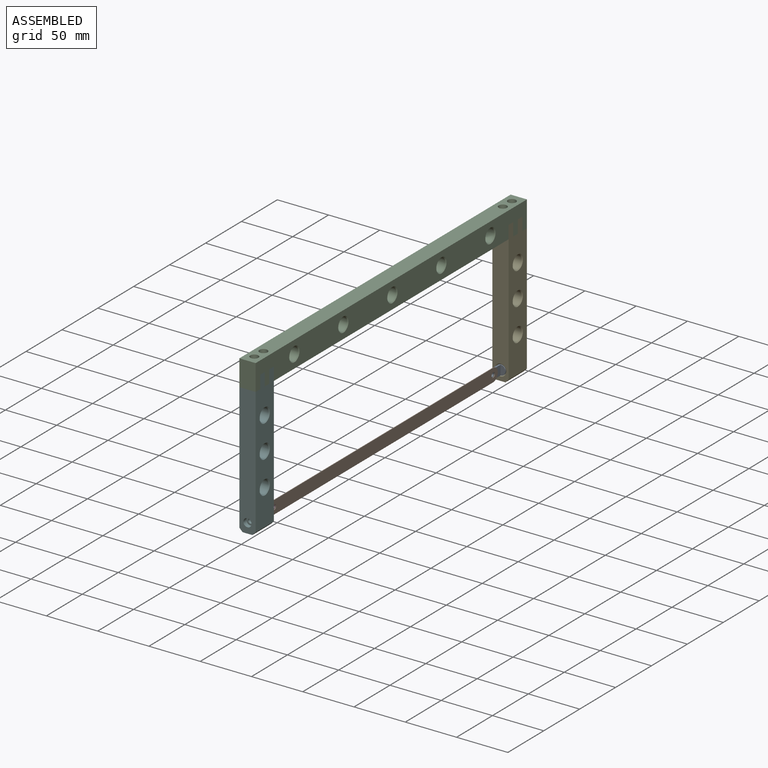
[diagram: assembled view]
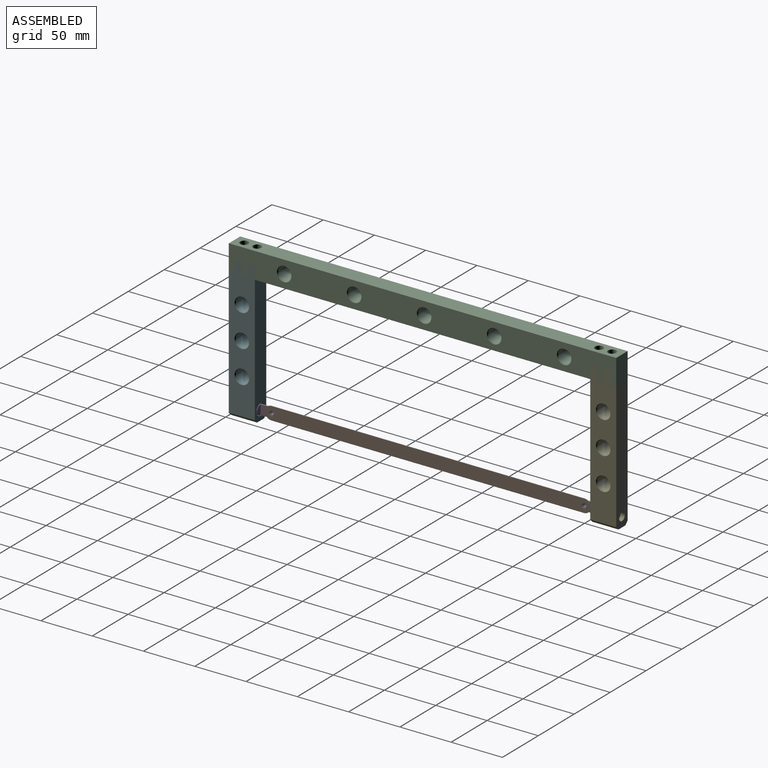
[diagram: assembled view, second angle]
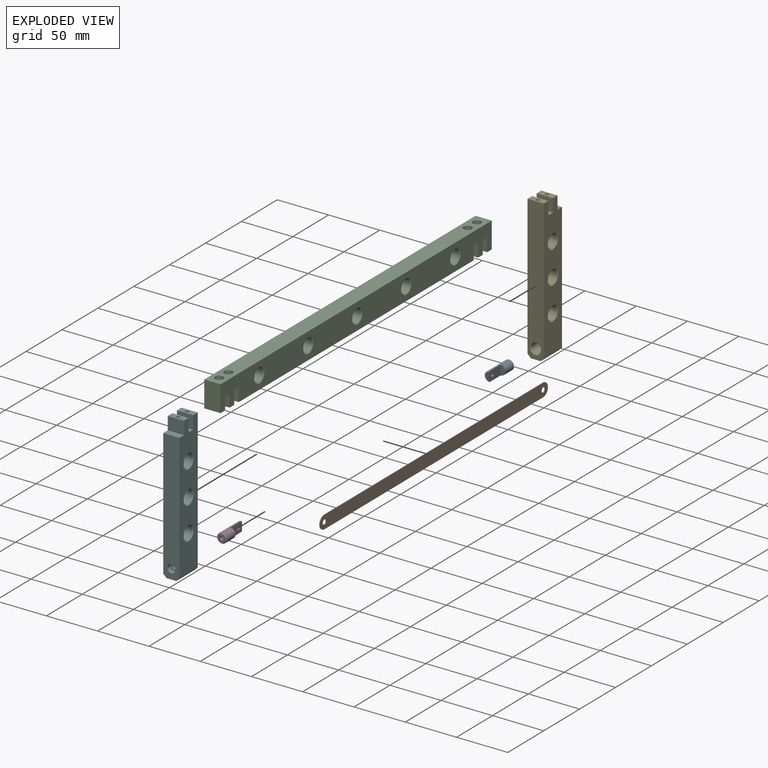
[diagram: exploded view]
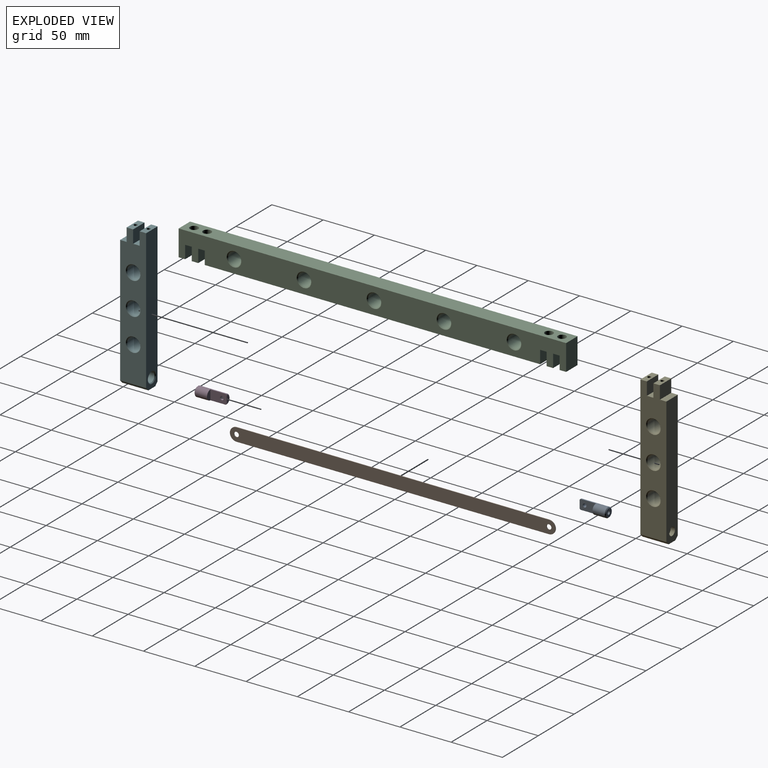
[diagram: exploded view, second angle]
ASSEMBLY  parts=6 mates=5
PART A: 10 faces, bbox 9.5x28.6x9.5 mm
  f0: cylinder r=4.76mm len=26.99mm, axis (0,-1,0), area 572.4mm2, adj f2,f4,f5,f8,f9
  f1: plane 7.94x3.97mm, normal (0,-1,0), area 24.7mm2, adj f2,f8
  f2: plane 15.88x9.53mm, normal (1,0,0), area 141.2mm2, adj f0,f1,f4,f5,f8
  f3: plane 7.94x7.94mm, normal (0,1,0), area 40.1mm2, adj f7,f9
  f4: plane 9.53x4.76mm, normal (0,-1,0), area 35.6mm2, adj f0,f2
  f5: cylinder r=1.73mm len=4.76mm, axis (1,0,0), area 49.9mm2, adj f0,f2
  f6: cone r=0mm half-angle=59deg, axis (0,1,0), area 10.9mm2, adj f7
  f7: cylinder r=1.73mm len=9.53mm, axis (0,1,0), area 103.4mm2, adj f3,f6
  f8: cone r=3.97mm half-angle=45deg, axis (0,1,0), area 15.4mm2, adj f0,f1,f2
  f9: cone r=3.97mm half-angle=45deg, axis (0,-1,0), area 30.8mm2, adj f0,f3
PART B: 8 faces, bbox 0.6x317.5x12.7 mm
  f0: plane 304.8x0.64mm, normal (0,0,-1), area 193.5mm2, adj f1,f4,f6,f7
  f1: cylinder r=6.35mm len=12.7mm, axis (-1,0,0), area 12.7mm2, adj f0,f2,f6,f7
  f2: plane 304.8x0.64mm, normal (0,0,1), area 193.5mm2, adj f1,f4,f6,f7
  f3: cylinder r=2.38mm len=4.76mm, axis (-1,0,0), area 9.5mm2, adj f6,f7
  f4: cylinder r=6.35mm len=12.7mm, axis (-1,0,0), area 12.7mm2, adj f0,f2,f6,f7
  f5: cylinder r=2.38mm len=4.76mm, axis (-1,0,0), area 9.5mm2, adj f6,f7
  f6: plane 317.5x12.7mm, normal (1,0,0), area 3962mm2, adj f0,f1,f2,f3,f4,f5
  f7: plane 317.5x12.7mm, normal (-1,0,0), area 3962mm2, adj f0,f1,f2,f3,f4,f5
PART C: 49 faces, bbox 15.9x377.8x25.4 mm
  f0: plane 15.88x6.35mm, normal (0,0,-1), area 100.8mm2, adj f4,f5,f22,f26
  f1: plane 327.03x15.88mm, normal (0,0,-1), area 5191.5mm2, adj f4,f5,f12,f23
  f2: plane 15.88x6.35mm, normal (0,0,-1), area 100.8mm2, adj f4,f5,f9,f13
  f3: plane 15.88x6.35mm, normal (0,0,-1), area 100.8mm2, adj f4,f5,f10,f15
  f4: plane 377.83x25.4mm, normal (1,0,0), area 8472.5mm2, adj f0,f1,f2,f3,f6,f7,f8,f9
  f5: plane 377.83x25.4mm, normal (-1,0,0), area 8472.5mm2, adj f0,f1,f2,f3,f6,f7,f8,f9
  f6: plane 15.88x6.35mm, normal (0,0,-1), area 100.8mm2, adj f4,f5,f8,f25
  f7: plane 377.83x15.88mm, normal (0,0,1), area 5800mm2, adj f4,f5,f8,f9,f18,f21,f30,f33
  f8: plane 25.4x15.88mm, normal (0,-1,0), area 403.2mm2, adj f4,f5,f6,f7
  f9: plane 25.4x15.88mm, normal (0,1,0), area 403.2mm2, adj f2,f4,f5,f7
  f10: plane 15.88x12.7mm, normal (0,-1,0), area 201.6mm2, adj f3,f4,f5,f11
  f11: plane 15.88x6.35mm, normal (0,0,-1), area 84.9mm2, adj f4,f5,f10,f12,f19
  f12: plane 15.88x12.7mm, normal (0,1,0), area 201.6mm2, adj f1,f4,f5,f11
  f13: plane 15.88x12.7mm, normal (0,-1,0), area 201.6mm2, adj f2,f4,f5,f14
  f14: plane 15.88x6.35mm, normal (0,0,-1), area 84.9mm2, adj f4,f5,f13,f15,f16
  f15: plane 15.88x12.7mm, normal (0,1,0), area 201.6mm2, adj f3,f4,f5,f14
  f16: cylinder r=2.25mm len=8.53mm, axis (0,0,1), area 120.5mm2, adj f14,f17
  f17: plane 7.94x7.94mm, normal (0,0,1), area 33.6mm2, adj f16,f18
  f18: cylinder r=3.97mm len=7.94mm, axis (0,0,1), area 103.9mm2, adj f7,f17
  f19: cylinder r=2.25mm len=8.53mm, axis (0,0,1), area 120.5mm2, adj f11,f20
  f20: plane 7.94x7.94mm, normal (0,0,1), area 33.6mm2, adj f19,f21
  f21: cylinder r=3.97mm len=7.94mm, axis (0,0,1), area 103.9mm2, adj f7,f20
  f22: plane 15.88x12.7mm, normal (0,1,0), area 201.6mm2, adj f0,f4,f5,f24
  f23: plane 15.88x12.7mm, normal (0,-1,0), area 201.6mm2, adj f1,f4,f5,f24
  f24: plane 15.88x6.35mm, normal (0,0,-1), area 84.9mm2, adj f4,f5,f22,f23,f31
  f25: plane 15.88x12.7mm, normal (0,1,0), area 201.6mm2, adj f4,f5,f6,f27
  f26: plane 15.88x12.7mm, normal (0,-1,0), area 201.6mm2, adj f0,f4,f5,f27
  f27: plane 15.88x6.35mm, normal (0,0,-1), area 84.9mm2, adj f4,f5,f25,f26,f28
  f28: cylinder r=2.25mm len=8.53mm, axis (0,0,1), area 120.5mm2, adj f27,f29
  f29: plane 7.94x7.94mm, normal (0,0,1), area 33.6mm2, adj f28,f30
  f30: cylinder r=3.97mm len=7.94mm, axis (0,0,1), area 103.9mm2, adj f7,f29
  f31: cylinder r=2.25mm len=8.53mm, axis (0,0,1), area 120.5mm2, adj f24,f32
  f32: plane 7.94x7.94mm, normal (0,0,1), area 33.6mm2, adj f31,f33
  f33: cylinder r=3.97mm len=7.94mm, axis (0,0,1), area 103.9mm2, adj f7,f32
  f34: cylinder r=6.35mm len=14.29mm, axis (1,0,0), area 570mm2, adj f35,f36
  f35: cone r=7.14mm half-angle=45deg, axis (-1,0,0), area 47.6mm2, adj f5,f34
  f36: cone r=7.14mm half-angle=45deg, axis (1,0,0), area 47.6mm2, adj f4,f34
  f37: cylinder r=6.35mm len=14.29mm, axis (1,0,0), area 570mm2, adj f38,f39
  f38: cone r=7.14mm half-angle=45deg, axis (-1,0,0), area 47.6mm2, adj f5,f37
  f39: cone r=7.14mm half-angle=45deg, axis (1,0,0), area 47.6mm2, adj f4,f37
  f40: cylinder r=6.35mm len=14.29mm, axis (1,0,0), area 570mm2, adj f41,f42
  f41: cone r=7.14mm half-angle=45deg, axis (-1,0,0), area 47.6mm2, adj f5,f40
  f42: cone r=7.14mm half-angle=45deg, axis (1,0,0), area 47.6mm2, adj f4,f40
  f43: cylinder r=6.35mm len=14.29mm, axis (1,0,0), area 570mm2, adj f44,f45
  f44: cone r=7.14mm half-angle=45deg, axis (-1,0,0), area 47.6mm2, adj f5,f43
  f45: cone r=7.14mm half-angle=45deg, axis (1,0,0), area 47.6mm2, adj f4,f43
  f46: cylinder r=6.35mm len=14.29mm, axis (1,0,0), area 570mm2, adj f47,f48
  f47: cone r=7.14mm half-angle=45deg, axis (-1,0,0), area 47.6mm2, adj f5,f46
  f48: cone r=7.14mm half-angle=45deg, axis (1,0,0), area 47.6mm2, adj f4,f46
PART D: same geometry as A
PART E: 33 faces, bbox 15.9x25.4x139.7 mm
  f0: plane 127x15.88mm, normal (0,1,0), area 1956.6mm2, adj f2,f3,f7,f11,f13,f14,f19
  f1: plane 15.88x6.35mm, normal (0,0,1), area 91.4mm2, adj f2,f3,f15,f18,f23
  f2: plane 136.53x25.4mm, normal (1,0,0), area 2825.5mm2, adj f0,f1,f5,f6,f13,f15,f16,f17
  f3: plane 136.53x25.4mm, normal (-1,0,0), area 2825.5mm2, adj f0,f1,f5,f6,f14,f15,f16,f17
  f4: cone r=0mm half-angle=59deg, axis (0,-1,0), area 64.6mm2, adj f8,f9
  f5: plane 139.7x15.88mm, normal (0,-1,0), area 2110.7mm2, adj f2,f3,f6,f7,f12,f13,f14
  f6: plane 15.88x6.35mm, normal (0,0,1), area 91.4mm2, adj f2,f3,f5,f16,f21
  f7: plane 25.4x9.53mm, normal (0,0,-1), area 241.9mm2, adj f0,f5,f13,f14
  f8: cylinder r=4.76mm len=15.08mm, axis (0,-1,0), area 451.3mm2, adj f4,f12
  f9: cylinder r=2.25mm len=4.5mm, axis (0,1,0), area 54.4mm2, adj f4,f10
  f10: plane 7.94x7.94mm, normal (0,1,0), area 33.6mm2, adj f9,f11
  f11: cylinder r=3.97mm len=7.94mm, axis (0,1,0), area 103.9mm2, adj f0,f10
  f12: cone r=4.76mm half-angle=45deg, axis (0,-1,0), area 36.4mm2, adj f5,f8
  f13: plane 25.4x3.18mm, normal (0.71,0,-0.71), area 114mm2, adj f0,f2,f5,f7
  f14: plane 25.4x3.18mm, normal (-0.71,0,-0.71), area 114mm2, adj f0,f3,f5,f7
  f15: plane 15.88x12.7mm, normal (0,-1,0), area 201.6mm2, adj f1,f2,f3,f17
  f16: plane 15.88x12.7mm, normal (0,1,0), area 201.6mm2, adj f2,f3,f6,f17
  f17: plane 15.88x6.35mm, normal (0,0,1), area 100.8mm2, adj f2,f3,f15,f16
  f18: plane 15.88x12.7mm, normal (0,1,0), area 201.6mm2, adj f1,f2,f3,f19
  f19: plane 15.88x6.35mm, normal (0,0,1), area 100.8mm2, adj f0,f2,f3,f18
  f20: cone r=0mm half-angle=59deg, axis (0,0,1), area 10.9mm2, adj f21
  f21: cylinder r=1.73mm len=12.7mm, axis (0,0,1), area 137.8mm2, adj f6,f20
  f22: cone r=0mm half-angle=59deg, axis (0,0,1), area 10.9mm2, adj f23
  f23: cylinder r=1.73mm len=12.7mm, axis (0,0,1), area 137.8mm2, adj f1,f22
  f24: cylinder r=6.35mm len=14.29mm, axis (1,0,0), area 570mm2, adj f28,f31
  f25: cylinder r=6.35mm len=14.29mm, axis (1,0,0), area 570mm2, adj f27,f30
  f26: cylinder r=6.35mm len=14.29mm, axis (1,0,0), area 570mm2, adj f29,f32
  f27: cone r=6.35mm half-angle=45deg, axis (-1,0,0), area 47.6mm2, adj f3,f25
  f28: cone r=6.35mm half-angle=45deg, axis (-1,0,0), area 47.6mm2, adj f3,f24
  f29: cone r=6.35mm half-angle=45deg, axis (-1,0,0), area 47.6mm2, adj f3,f26
  f30: cone r=7.14mm half-angle=45deg, axis (1,0,0), area 47.6mm2, adj f2,f25
  f31: cone r=7.14mm half-angle=45deg, axis (1,0,0), area 47.6mm2, adj f2,f24
  f32: cone r=7.14mm half-angle=45deg, axis (1,0,0), area 47.6mm2, adj f2,f26
PART F: same geometry as E
PLACE A at identity
PLACE B at identity
PLACE C at identity
PLACE D rot(axis=(1,0,0),180deg) t=(0,-304.8,0)mm
PLACE E at identity
PLACE F rot(axis=(0,0,1),180deg) t=(0,-304.8,0)mm
MATE fastened E.f4 <-> A.f0  axis (0,-1,0) through (0,11.11,0)mm
MATE fastened D.f5 <-> B.f3  axis (1,0,0) through (0,-304.8,0)mm
MATE fastened C.f9 <-> E.f0  axis (0,1,0) through (0,36.51,117.48)mm
MATE fastened F.f4 <-> D.f0  axis (0,1,0) through (0,-315.91,0)mm
MATE fastened A.f5 <-> B.f5  axis (1,0,0) through (0,0,0)mm
